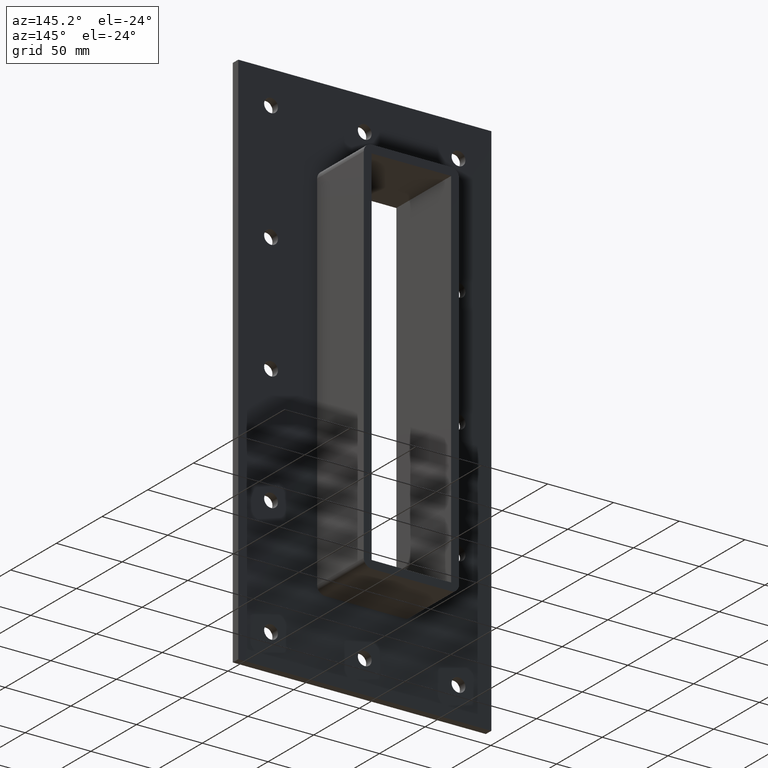
[diagram: clean part render]
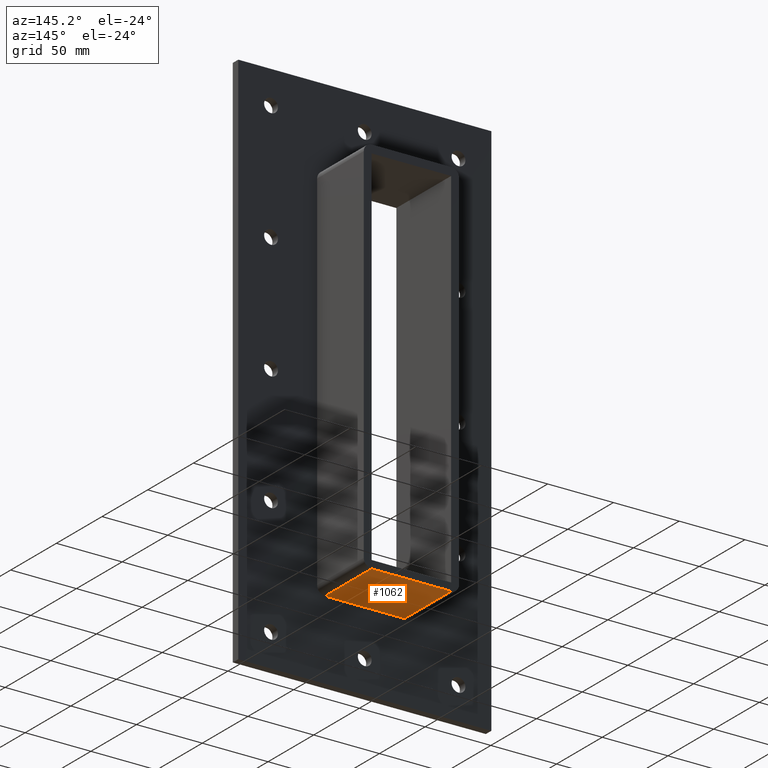
[diagram: same view with one face highlighted and labeled with its STEP entity id]
A machine part, auxiliary view. The second image highlights one B-rep face of the part: STEP entity #1062.
In plain terms, the highlighted planar face has unit normal (0, 0, -1).
Its self-contained STEP definition (entity closure, byte-faithful):
#479=CARTESIAN_POINT('',(-30.250000000000004,6.000000000000001,-145.0));
#480=VERTEX_POINT('',#479);
#490=CARTESIAN_POINT('',(30.250000000000004,6.000000000000001,-145.0));
#491=VERTEX_POINT('',#490);
#492=CARTESIAN_POINT('',(30.25,6.000000000000001,-145.0));
#493=DIRECTION('',(-1.0,0.0,0.0));
#494=VECTOR('',#493,60.5);
#495=LINE('',#492,#494);
#496=EDGE_CURVE('',#491,#480,#495,.T.);
#971=CARTESIAN_POINT('',(30.250000000000004,57.0,-145.0));
#972=VERTEX_POINT('',#971);
#973=CARTESIAN_POINT('',(30.250000000000004,6.000000000000001,-145.0));
#974=DIRECTION('',(0.0,1.0,0.0));
#975=VECTOR('',#974,51.0);
#976=LINE('',#973,#975);
#977=EDGE_CURVE('',#491,#972,#976,.T.);
#1039=CARTESIAN_POINT('',(36.250000000000007,0.0,-145.0));
#1040=DIRECTION('',(0.0,0.0,-1.0));
#1041=DIRECTION('',(-1.0,0.0,0.0));
#1042=AXIS2_PLACEMENT_3D('',#1039,#1040,#1041);
#1043=PLANE('',#1042);
#1044=ORIENTED_EDGE('',*,*,#496,.T.);
#1045=CARTESIAN_POINT('',(-30.25,57.0,-145.0));
#1046=VERTEX_POINT('',#1045);
#1047=CARTESIAN_POINT('',(-30.250000000000004,57.0,-145.0));
#1048=DIRECTION('',(0.0,-1.0,0.0));
#1049=VECTOR('',#1048,51.0);
#1050=LINE('',#1047,#1049);
#1051=EDGE_CURVE('',#1046,#480,#1050,.T.);
#1052=ORIENTED_EDGE('',*,*,#1051,.F.);
#1053=CARTESIAN_POINT('',(30.250000000000007,57.0,-145.0));
#1054=DIRECTION('',(-1.0,0.0,0.0));
#1055=VECTOR('',#1054,60.5);
#1056=LINE('',#1053,#1055);
#1057=EDGE_CURVE('',#972,#1046,#1056,.T.);
#1058=ORIENTED_EDGE('',*,*,#1057,.F.);
#1059=ORIENTED_EDGE('',*,*,#977,.F.);
#1060=EDGE_LOOP('',(#1044,#1052,#1058,#1059));
#1061=FACE_OUTER_BOUND('',#1060,.T.);
#1062=ADVANCED_FACE('',(#1061),#1043,.T.);